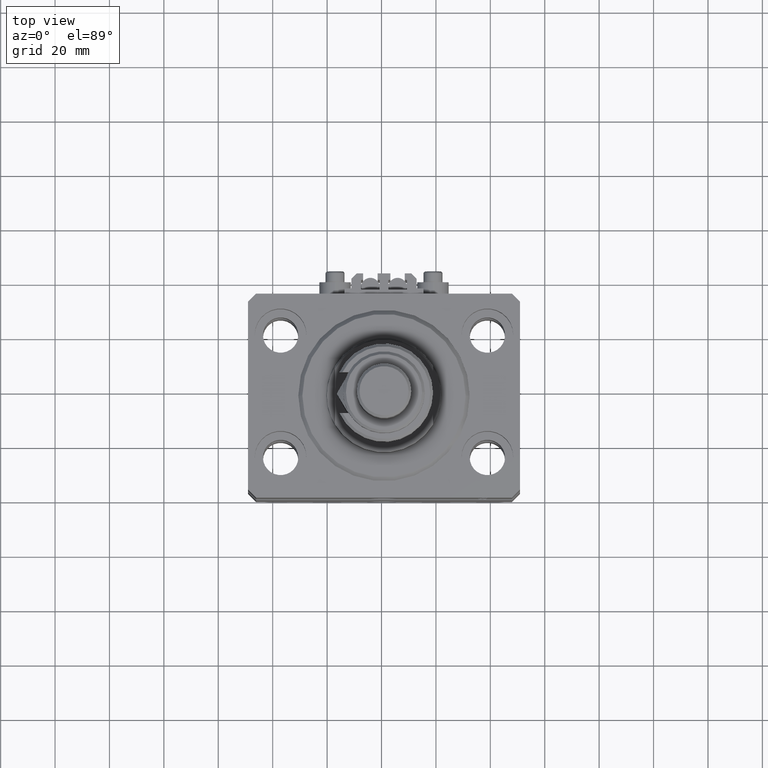
[diagram: clean part render]
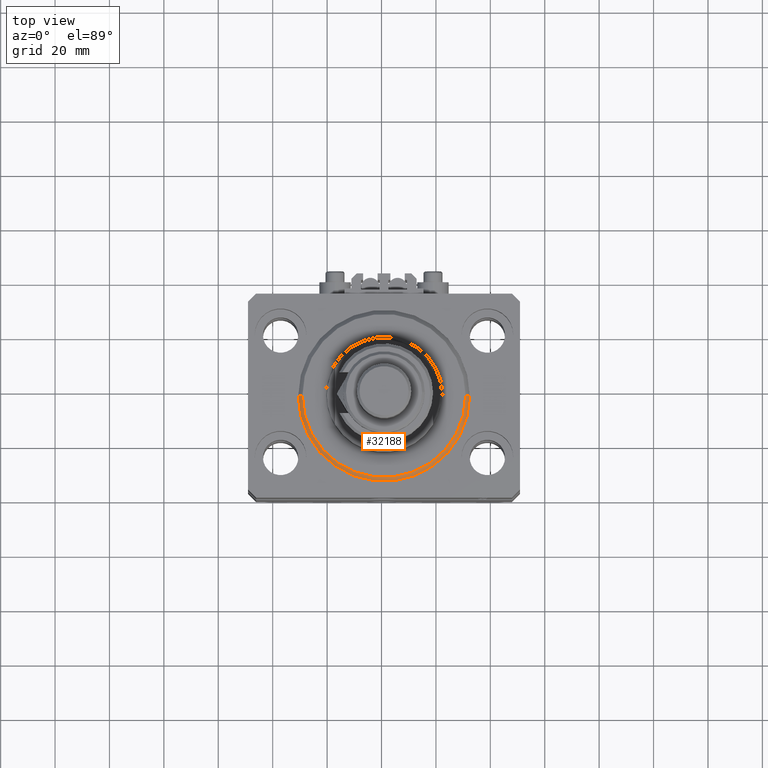
[diagram: same view with one face highlighted and labeled with its STEP entity id]
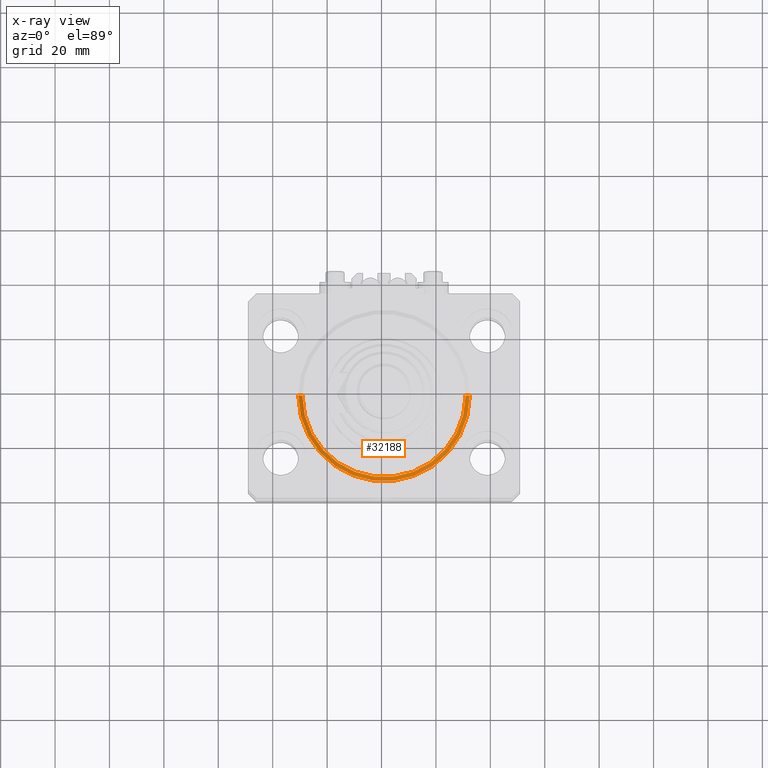
[diagram: x-ray of the same camera — body ghosted, the highlighted face saturated]
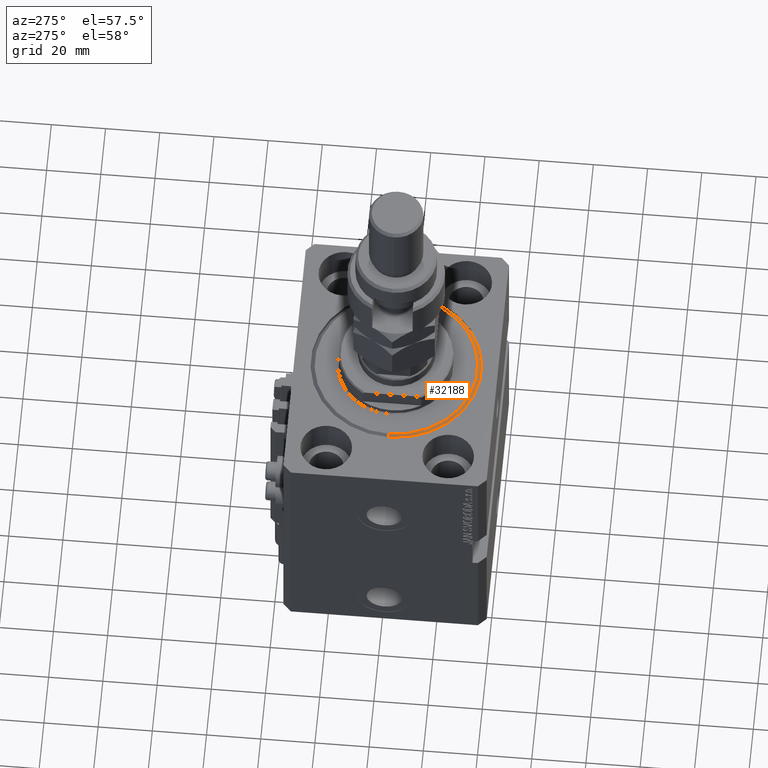
[diagram: same view with one face highlighted and labeled with its STEP entity id]
A machine part, top view. The second image highlights one B-rep face of the part: STEP entity #32188.
The next image is the same camera in x-ray: the body ghosted, the highlighted face saturated — about 0% of this face is hidden behind the body in this view.
A second angle (auxiliary view) of the same face is appended — the face is thin or edge-on in the first view.
In plain terms, the highlighted conical surface has half-angle 45 deg.
Its self-contained STEP definition (entity closure, byte-faithful):
#93 = DIRECTION ( 'NONE',  ( -0.000000000000000000, -0.000000000000000000, 1.000000000000000000 ) ) ;
#318 = EDGE_LOOP ( 'NONE', ( #38922, #35288, #44417, #6480 ) ) ;
#1987 = CARTESIAN_POINT ( 'NONE',  ( 31.50000000000000000, 3.857637417314162689E-15, 1.500000000000001332 ) ) ;
#2696 = CONICAL_SURFACE ( 'NONE', #31668, 31.50000000000000000, 0.7853981633974506105 ) ;
#2762 = DIRECTION ( 'NONE',  ( 0.7071067811865491270, 0.000000000000000000, 0.7071067811865459074 ) ) ;
#2922 = CARTESIAN_POINT ( 'NONE',  ( -31.50000000000000000, 0.000000000000000000, 1.500000000000001332 ) ) ;
#4235 = VERTEX_POINT ( 'NONE', #1987 ) ;
#6176 = CIRCLE ( 'NONE', #26046, 29.99999999999999289 ) ;
#6480 = ORIENTED_EDGE ( 'NONE', *, *, #29760, .F. ) ;
#6662 = CARTESIAN_POINT ( 'NONE',  ( 31.50000000000000000, 0.000000000000000000, 1.500000000000001332 ) ) ;
#9872 = CARTESIAN_POINT ( 'NONE',  ( -31.50000000000000000, 3.857637417314162689E-15, 1.500000000000001332 ) ) ;
#10010 = VERTEX_POINT ( 'NONE', #15270 ) ;
#14431 = LINE ( 'NONE', #6662, #35816 ) ;
#15270 = CARTESIAN_POINT ( 'NONE',  ( -29.99999999999999289, 3.765788907378110539E-15, 0.000000000000000000 ) ) ;
#15558 = VECTOR ( 'NONE', #41258, 1000.000000000000000 ) ;
#15619 = EDGE_CURVE ( 'NONE', #10010, #16553, #49055, .T. ) ;
#16553 = VERTEX_POINT ( 'NONE', #2922 ) ;
#17260 = VERTEX_POINT ( 'NONE', #39274 ) ;
#22681 = DIRECTION ( 'NONE',  ( 1.000000000000000000, 0.000000000000000000, 0.000000000000000000 ) ) ;
#23397 = CIRCLE ( 'NONE', #34039, 31.50000000000000000 ) ;
#26046 = AXIS2_PLACEMENT_3D ( 'NONE', #43896, #43378, #51172 ) ;
#26824 = FACE_OUTER_BOUND ( 'NONE', #318, .T. ) ;
#29760 = EDGE_CURVE ( 'NONE', #16553, #4235, #23397, .T. ) ;
#31668 = AXIS2_PLACEMENT_3D ( 'NONE', #34855, #93, #22681 ) ;
#32188 = ADVANCED_FACE ( 'NONE', ( #26824 ), #2696, .T. ) ;
#34039 = AXIS2_PLACEMENT_3D ( 'NONE', #43512, #35452, #39340 ) ;
#34855 = CARTESIAN_POINT ( 'NONE',  ( 0.000000000000000000, 0.000000000000000000, 1.500000000000001332 ) ) ;
#35288 = ORIENTED_EDGE ( 'NONE', *, *, #37826, .F. ) ;
#35452 = DIRECTION ( 'NONE',  ( -0.000000000000000000, -0.000000000000000000, 1.000000000000000000 ) ) ;
#35816 = VECTOR ( 'NONE', #2762, 1000.000000000000000 ) ;
#37826 = EDGE_CURVE ( 'NONE', #17260, #10010, #6176, .T. ) ;
#38922 = ORIENTED_EDGE ( 'NONE', *, *, #15619, .F. ) ;
#39274 = CARTESIAN_POINT ( 'NONE',  ( 29.99999999999999289, 0.000000000000000000, 0.000000000000000000 ) ) ;
#39340 = DIRECTION ( 'NONE',  ( 1.000000000000000000, 0.000000000000000000, 0.000000000000000000 ) ) ;
#41258 = DIRECTION ( 'NONE',  ( -0.7071067811865491270, 8.659560562354952580E-17, 0.7071067811865459074 ) ) ;
#41959 = EDGE_CURVE ( 'NONE', #17260, #4235, #14431, .T. ) ;
#43378 = DIRECTION ( 'NONE',  ( -0.000000000000000000, -0.000000000000000000, -1.000000000000000000 ) ) ;
#43512 = CARTESIAN_POINT ( 'NONE',  ( 0.000000000000000000, 0.000000000000000000, 1.500000000000001332 ) ) ;
#43896 = CARTESIAN_POINT ( 'NONE',  ( 0.000000000000000000, 0.000000000000000000, 0.000000000000000000 ) ) ;
#44417 = ORIENTED_EDGE ( 'NONE', *, *, #41959, .T. ) ;
#49055 = LINE ( 'NONE', #9872, #15558 ) ;
#51172 = DIRECTION ( 'NONE',  ( 1.000000000000000000, 0.000000000000000000, 0.000000000000000000 ) ) ;